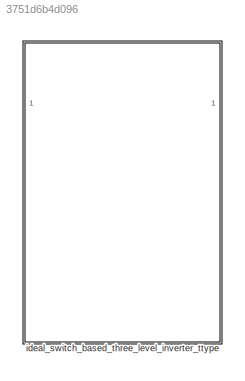
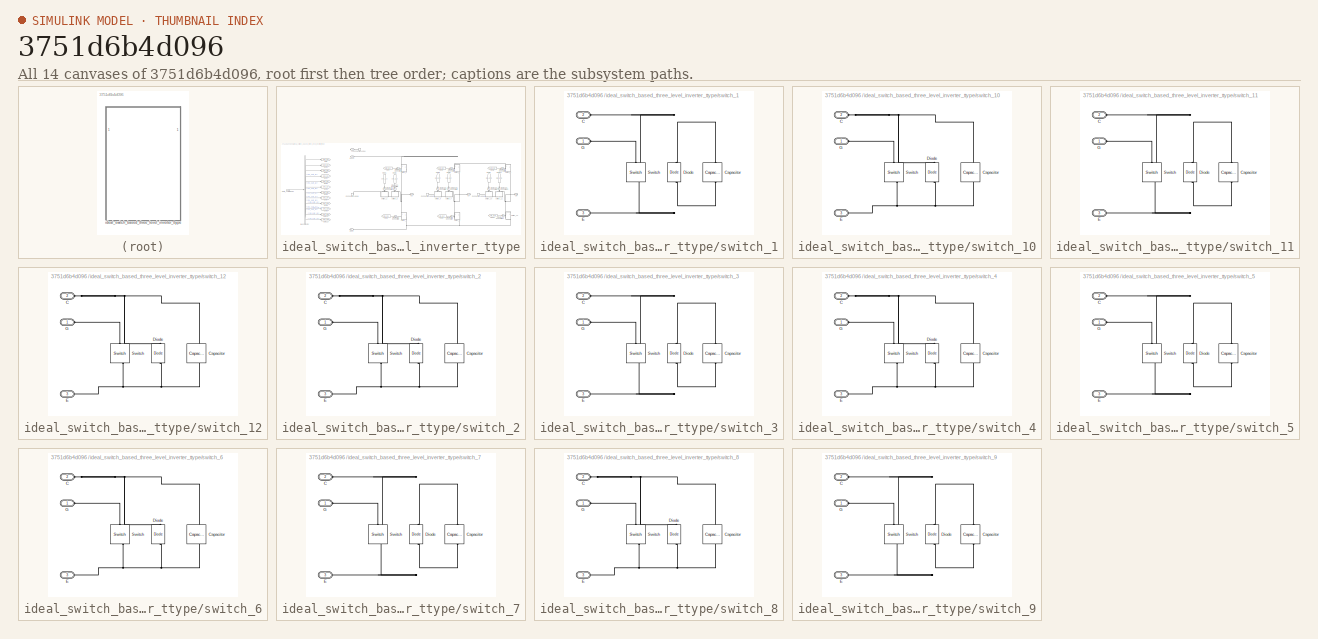
[diagram: thumbnail index - all 14 canvases of the model, root first then tree order]
MODEL slx_3751d6b4d096
KIND library
CONFIG AbsTol = auto
CONFIG EnableMultiTasking = off
CONFIG FixedStep = auto
CONFIG MaxStep = auto
CONFIG MinStep = auto
CONFIG RelTol = 1e-3
CONFIG SampleTimeConstraint = Unconstrained
CONFIG SolverName = VariableStepAuto
CONFIG StartTime = 0.0
CONFIG StopTime = 10.0
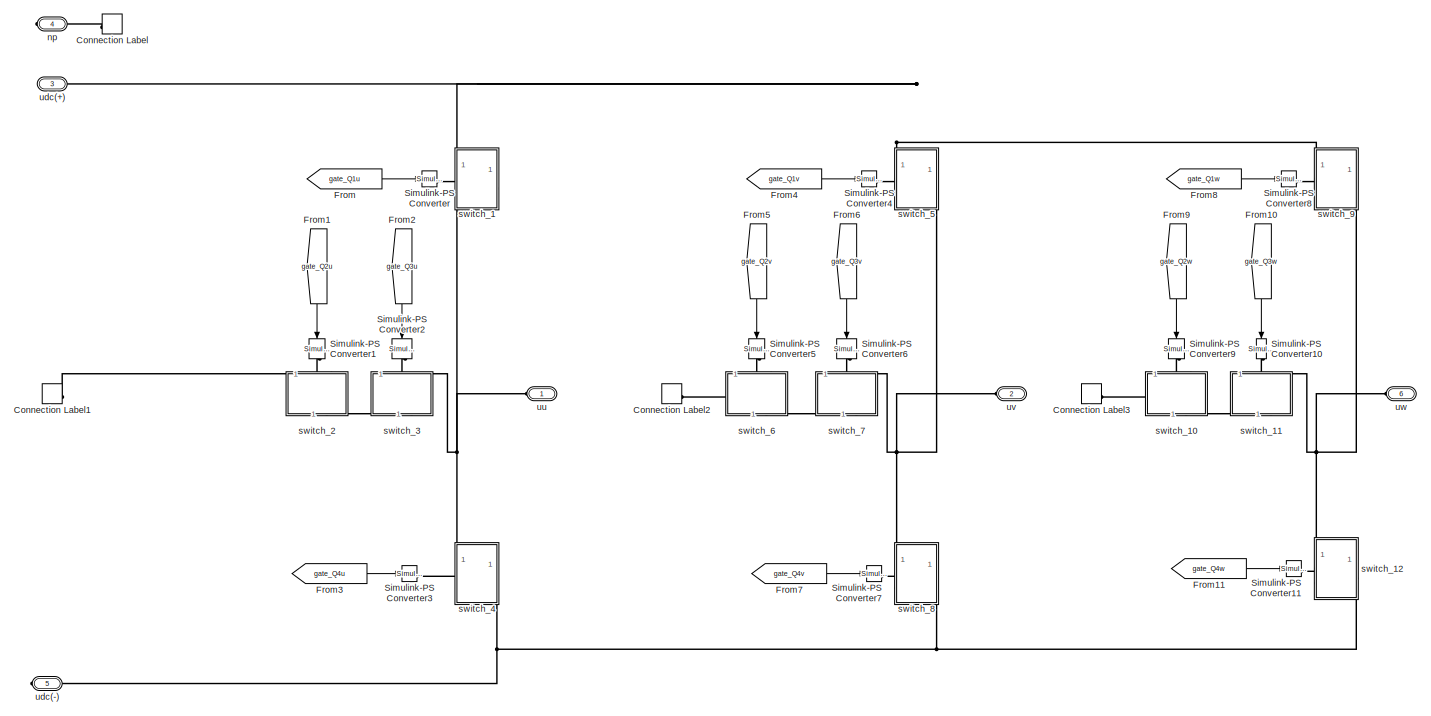
[diagram: ideal_switch_based_three_level_inverter_ttype - part 1/2, most of the canvas]
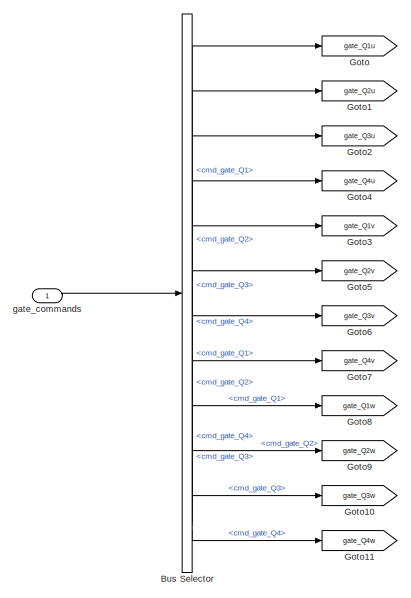
[diagram: ideal_switch_based_three_level_inverter_ttype - part 2/2, left side, full height]
BLOCK [SubSystem] ideal_switch_based_three_level_inverter_ttype
BLOCK [BusSelector] ideal_switch_based_three_level_inverter_ttype/Bus Selector
  OutputSignals = gate_cmds_phu.cmd_gate_Q1,gate_cmds_phu.cmd_gate_Q2,gate_cmds_phu.cmd_gate_Q3,gate_cmds_phu.cmd_gate_Q4,gate_cmds_phv.cmd_gate_Q1,gate_cmds_phv.cmd_gate_Q2,gate_cmds_phv.cmd_gate_Q3,gate_cmds_phv.cmd_gate_Q4,gate_cmds_phw.cmd_gate_Q1,gate_cmds_phw.cmd_gate_Q2,gate_cmds_phw.cmd_gate_Q3,gate_cmds_phw.cmd_gate_Q4
BLOCK [ConnectionLabel] ideal_switch_based_three_level_inverter_ttype/Connection Label
  Label = np
BLOCK [ConnectionLabel] ideal_switch_based_three_level_inverter_ttype/Connection Label1
  Label = np
  NameLocation = top
BLOCK [ConnectionLabel] ideal_switch_based_three_level_inverter_ttype/Connection Label2
  Label = np
  NameLocation = top
BLOCK [ConnectionLabel] ideal_switch_based_three_level_inverter_ttype/Connection Label3
  Label = np
  NameLocation = top
BLOCK [From] ideal_switch_based_three_level_inverter_ttype/From
  GotoTag = gate_Q1u
BLOCK [From] ideal_switch_based_three_level_inverter_ttype/From1
  GotoTag = gate_Q2u
  NameLocation = left
BLOCK [From] ideal_switch_based_three_level_inverter_ttype/From10
  GotoTag = gate_Q3w
  NameLocation = left
BLOCK [From] ideal_switch_based_three_level_inverter_ttype/From11
  GotoTag = gate_Q4w
BLOCK [From] ideal_switch_based_three_level_inverter_ttype/From2
  GotoTag = gate_Q3u
  NameLocation = left
BLOCK [From] ideal_switch_based_three_level_inverter_ttype/From3
  GotoTag = gate_Q4u
  NameLocation = top
BLOCK [From] ideal_switch_based_three_level_inverter_ttype/From4
  GotoTag = gate_Q1v
BLOCK [From] ideal_switch_based_three_level_inverter_ttype/From5
  GotoTag = gate_Q2v
  NameLocation = left
BLOCK [From] ideal_switch_based_three_level_inverter_ttype/From6
  GotoTag = gate_Q3v
  NameLocation = left
BLOCK [From] ideal_switch_based_three_level_inverter_ttype/From7
  GotoTag = gate_Q4v
  NameLocation = top
BLOCK [From] ideal_switch_based_three_level_inverter_ttype/From8
  GotoTag = gate_Q1w
BLOCK [From] ideal_switch_based_three_level_inverter_ttype/From9
  GotoTag = gate_Q2w
  NameLocation = left
BLOCK [Goto] ideal_switch_based_three_level_inverter_ttype/Goto
  GotoTag = gate_Q1u
BLOCK [Goto] ideal_switch_based_three_level_inverter_ttype/Goto1
  GotoTag = gate_Q2u
BLOCK [Goto] ideal_switch_based_three_level_inverter_ttype/Goto10
  GotoTag = gate_Q3w
BLOCK [Goto] ideal_switch_based_three_level_inverter_ttype/Goto11
  GotoTag = gate_Q4w
BLOCK [Goto] ideal_switch_based_three_level_inverter_ttype/Goto2
  GotoTag = gate_Q3u
BLOCK [Goto] ideal_switch_based_three_level_inverter_ttype/Goto3
  GotoTag = gate_Q1v
BLOCK [Goto] ideal_switch_based_three_level_inverter_ttype/Goto4
  GotoTag = gate_Q4u
BLOCK [Goto] ideal_switch_based_three_level_inverter_ttype/Goto5
  GotoTag = gate_Q2v
BLOCK [Goto] ideal_switch_based_three_level_inverter_ttype/Goto6
  GotoTag = gate_Q3v
BLOCK [Goto] ideal_switch_based_three_level_inverter_ttype/Goto7
  GotoTag = gate_Q4v
BLOCK [Goto] ideal_switch_based_three_level_inverter_ttype/Goto8
  GotoTag = gate_Q1w
BLOCK [Goto] ideal_switch_based_three_level_inverter_ttype/Goto9
  GotoTag = gate_Q2w
BLOCK [Reference] ideal_switch_based_three_level_inverter_ttype/Simulink-PS Converter  REF=nesl_utility/Simulink-PS
Converter
  SourceBlock = nesl_utility/Simulink-PS\nConverter
  SourceType = Simulink-PS\nConverter
BLOCK [Reference] ideal_switch_based_three_level_inverter_ttype/Simulink-PS Converter1  REF=nesl_utility/Simulink-PS
Converter
  NameLocation = top
  SourceBlock = nesl_utility/Simulink-PS\nConverter
  SourceType = Simulink-PS\nConverter
BLOCK [Reference] ideal_switch_based_three_level_inverter_ttype/Simulink-PS Converter10  REF=nesl_utility/Simulink-PS
Converter
  NameLocation = right
  SourceBlock = nesl_utility/Simulink-PS\nConverter
  SourceType = Simulink-PS\nConverter
BLOCK [Reference] ideal_switch_based_three_level_inverter_ttype/Simulink-PS Converter11  REF=nesl_utility/Simulink-PS
Converter
  SourceBlock = nesl_utility/Simulink-PS\nConverter
  SourceType = Simulink-PS\nConverter
BLOCK [Reference] ideal_switch_based_three_level_inverter_ttype/Simulink-PS Converter2  REF=nesl_utility/Simulink-PS
Converter
  NameLocation = right
  SourceBlock = nesl_utility/Simulink-PS\nConverter
  SourceType = Simulink-PS\nConverter
BLOCK [Reference] ideal_switch_based_three_level_inverter_ttype/Simulink-PS Converter3  REF=nesl_utility/Simulink-PS
Converter
  NameLocation = top
  SourceBlock = nesl_utility/Simulink-PS\nConverter
  SourceType = Simulink-PS\nConverter
BLOCK [Reference] ideal_switch_based_three_level_inverter_ttype/Simulink-PS Converter4  REF=nesl_utility/Simulink-PS
Converter
  SourceBlock = nesl_utility/Simulink-PS\nConverter
  SourceType = Simulink-PS\nConverter
BLOCK [Reference] ideal_switch_based_three_level_inverter_ttype/Simulink-PS Converter5  REF=nesl_utility/Simulink-PS
Converter
  NameLocation = top
  SourceBlock = nesl_utility/Simulink-PS\nConverter
  SourceType = Simulink-PS\nConverter
BLOCK [Reference] ideal_switch_based_three_level_inverter_ttype/Simulink-PS Converter6  REF=nesl_utility/Simulink-PS
Converter
  NameLocation = right
  SourceBlock = nesl_utility/Simulink-PS\nConverter
  SourceType = Simulink-PS\nConverter
BLOCK [Reference] ideal_switch_based_three_level_inverter_ttype/Simulink-PS Converter7  REF=nesl_utility/Simulink-PS
Converter
  NameLocation = top
  SourceBlock = nesl_utility/Simulink-PS\nConverter
  SourceType = Simulink-PS\nConverter
BLOCK [Reference] ideal_switch_based_three_level_inverter_ttype/Simulink-PS Converter8  REF=nesl_utility/Simulink-PS
Converter
  SourceBlock = nesl_utility/Simulink-PS\nConverter
  SourceType = Simulink-PS\nConverter
BLOCK [Reference] ideal_switch_based_three_level_inverter_ttype/Simulink-PS Converter9  REF=nesl_utility/Simulink-PS
Converter
  NameLocation = top
  SourceBlock = nesl_utility/Simulink-PS\nConverter
  SourceType = Simulink-PS\nConverter
BLOCK [Inport] ideal_switch_based_three_level_inverter_ttype/gate_commands
BLOCK [PMIOPort] ideal_switch_based_three_level_inverter_ttype/np
  Port = 4
  Side = Right
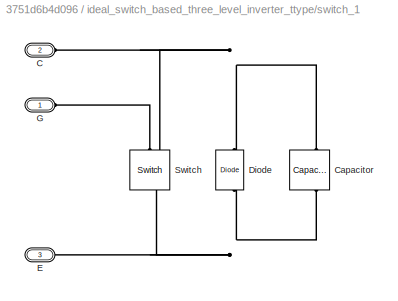
BLOCK [SubSystem] ideal_switch_based_three_level_inverter_ttype/switch_1
  NameLocation = right
  PortSchema = {"entries":[{"content":{"sides":[{"content":{"connectorIds":["LConn1"]},"type":"ConnectorPlacement.EquallySpacedRectSide","uuid":"9277da8d-d460-43e6-8478-dd662f15d226"},{"content":{"connectorIds":[],"side":"RIGHT"},"type":"ConnectorPlacement.EquallySpacedRectSide","uuid":"a7ece396-f1d9-4f4f-a05b-db1fc65d6e1d"},{"content":{"connectorIds":["LConn2"],"side":"TOP"},"type":"ConnectorPlacement.EquallySp...<+397ch>  <repeated x12 — deduplicated; at blocks: switch_1, switch_10, switch_11, switch_12, switch_2, switch_3, switch_4, switch_5, switch_6, switch_7, switch_8, switch_9>
BLOCK [PMIOPort] ideal_switch_based_three_level_inverter_ttype/switch_1/C
  NameLocation = top
  Port = 2
  Side = Left
BLOCK [Reference] ideal_switch_based_three_level_inverter_ttype/switch_1/Capacitor  REF=fl_lib/Electrical/Electrical Elements/Capacitor
  NameLocation = left
  SourceBlock = fl_lib/Electrical/Electrical Elements/Capacitor
  SourceType = Capacitor
BLOCK [Reference] ideal_switch_based_three_level_inverter_ttype/switch_1/Diode  REF=fl_lib/Electrical/Electrical Elements/Diode
  NameLocation = right
  SourceBlock = fl_lib/Electrical/Electrical Elements/Diode
  SourceType = Diode
BLOCK [PMIOPort] ideal_switch_based_three_level_inverter_ttype/switch_1/E
  NameLocation = top
  Port = 3
  Side = Right
BLOCK [PMIOPort] ideal_switch_based_three_level_inverter_ttype/switch_1/G
  NameLocation = top
  Side = Left
BLOCK [Reference] ideal_switch_based_three_level_inverter_ttype/switch_1/Switch  REF=fl_lib/Electrical/Electrical Elements/Switch
  NameLocation = left
  SourceBlock = fl_lib/Electrical/Electrical Elements/Switch
  SourceType = Switch
BLOCK [SubSystem] ideal_switch_based_three_level_inverter_ttype/switch_10
BLOCK [PMIOPort] ideal_switch_based_three_level_inverter_ttype/switch_10/C
  NameLocation = top
  Port = 2
  Side = Left
BLOCK [Reference] ideal_switch_based_three_level_inverter_ttype/switch_10/Capacitor  REF=fl_lib/Electrical/Electrical Elements/Capacitor
  NameLocation = left
  SourceBlock = fl_lib/Electrical/Electrical Elements/Capacitor
  SourceType = Capacitor
BLOCK [Reference] ideal_switch_based_three_level_inverter_ttype/switch_10/Diode  REF=fl_lib/Electrical/Electrical Elements/Diode
  NameLocation = right
  SourceBlock = fl_lib/Electrical/Electrical Elements/Diode
  SourceType = Diode
BLOCK [PMIOPort] ideal_switch_based_three_level_inverter_ttype/switch_10/E
  NameLocation = top
  Port = 3
  Side = Right
BLOCK [PMIOPort] ideal_switch_based_three_level_inverter_ttype/switch_10/G
  NameLocation = top
  Side = Left
BLOCK [Reference] ideal_switch_based_three_level_inverter_ttype/switch_10/Switch  REF=fl_lib/Electrical/Electrical Elements/Switch
  NameLocation = left
  SourceBlock = fl_lib/Electrical/Electrical Elements/Switch
  SourceType = Switch
BLOCK [SubSystem] ideal_switch_based_three_level_inverter_ttype/switch_11
BLOCK [PMIOPort] ideal_switch_based_three_level_inverter_ttype/switch_11/C
  NameLocation = top
  Port = 2
  Side = Left
BLOCK [Reference] ideal_switch_based_three_level_inverter_ttype/switch_11/Capacitor  REF=fl_lib/Electrical/Electrical Elements/Capacitor
  NameLocation = left
  SourceBlock = fl_lib/Electrical/Electrical Elements/Capacitor
  SourceType = Capacitor
BLOCK [Reference] ideal_switch_based_three_level_inverter_ttype/switch_11/Diode  REF=fl_lib/Electrical/Electrical Elements/Diode
  NameLocation = right
  SourceBlock = fl_lib/Electrical/Electrical Elements/Diode
  SourceType = Diode
BLOCK [PMIOPort] ideal_switch_based_three_level_inverter_ttype/switch_11/E
  NameLocation = top
  Port = 3
  Side = Right
BLOCK [PMIOPort] ideal_switch_based_three_level_inverter_ttype/switch_11/G
  NameLocation = top
  Side = Left
BLOCK [Reference] ideal_switch_based_three_level_inverter_ttype/switch_11/Switch  REF=fl_lib/Electrical/Electrical Elements/Switch
  NameLocation = left
  SourceBlock = fl_lib/Electrical/Electrical Elements/Switch
  SourceType = Switch
BLOCK [SubSystem] ideal_switch_based_three_level_inverter_ttype/switch_12
  NameLocation = right
BLOCK [PMIOPort] ideal_switch_based_three_level_inverter_ttype/switch_12/C
  NameLocation = top
  Port = 2
  Side = Left
BLOCK [Reference] ideal_switch_based_three_level_inverter_ttype/switch_12/Capacitor  REF=fl_lib/Electrical/Electrical Elements/Capacitor
  NameLocation = left
  SourceBlock = fl_lib/Electrical/Electrical Elements/Capacitor
  SourceType = Capacitor
BLOCK [Reference] ideal_switch_based_three_level_inverter_ttype/switch_12/Diode  REF=fl_lib/Electrical/Electrical Elements/Diode
  NameLocation = right
  SourceBlock = fl_lib/Electrical/Electrical Elements/Diode
  SourceType = Diode
BLOCK [PMIOPort] ideal_switch_based_three_level_inverter_ttype/switch_12/E
  NameLocation = top
  Port = 3
  Side = Right
BLOCK [PMIOPort] ideal_switch_based_three_level_inverter_ttype/switch_12/G
  NameLocation = top
  Side = Left
BLOCK [Reference] ideal_switch_based_three_level_inverter_ttype/switch_12/Switch  REF=fl_lib/Electrical/Electrical Elements/Switch
  NameLocation = left
  SourceBlock = fl_lib/Electrical/Electrical Elements/Switch
  SourceType = Switch
BLOCK [SubSystem] ideal_switch_based_three_level_inverter_ttype/switch_2
BLOCK [PMIOPort] ideal_switch_based_three_level_inverter_ttype/switch_2/C
  NameLocation = top
  Port = 2
  Side = Left
BLOCK [Reference] ideal_switch_based_three_level_inverter_ttype/switch_2/Capacitor  REF=fl_lib/Electrical/Electrical Elements/Capacitor
  NameLocation = left
  SourceBlock = fl_lib/Electrical/Electrical Elements/Capacitor
  SourceType = Capacitor
BLOCK [Reference] ideal_switch_based_three_level_inverter_ttype/switch_2/Diode  REF=fl_lib/Electrical/Electrical Elements/Diode
  NameLocation = right
  SourceBlock = fl_lib/Electrical/Electrical Elements/Diode
  SourceType = Diode
BLOCK [PMIOPort] ideal_switch_based_three_level_inverter_ttype/switch_2/E
  NameLocation = top
  Port = 3
  Side = Right
BLOCK [PMIOPort] ideal_switch_based_three_level_inverter_ttype/switch_2/G
  NameLocation = top
  Side = Left
BLOCK [Reference] ideal_switch_based_three_level_inverter_ttype/switch_2/Switch  REF=fl_lib/Electrical/Electrical Elements/Switch
  NameLocation = left
  SourceBlock = fl_lib/Electrical/Electrical Elements/Switch
  SourceType = Switch
BLOCK [SubSystem] ideal_switch_based_three_level_inverter_ttype/switch_3
BLOCK [PMIOPort] ideal_switch_based_three_level_inverter_ttype/switch_3/C
  NameLocation = top
  Port = 2
  Side = Left
BLOCK [Reference] ideal_switch_based_three_level_inverter_ttype/switch_3/Capacitor  REF=fl_lib/Electrical/Electrical Elements/Capacitor
  NameLocation = left
  SourceBlock = fl_lib/Electrical/Electrical Elements/Capacitor
  SourceType = Capacitor
BLOCK [Reference] ideal_switch_based_three_level_inverter_ttype/switch_3/Diode  REF=fl_lib/Electrical/Electrical Elements/Diode
  NameLocation = right
  SourceBlock = fl_lib/Electrical/Electrical Elements/Diode
  SourceType = Diode
BLOCK [PMIOPort] ideal_switch_based_three_level_inverter_ttype/switch_3/E
  NameLocation = top
  Port = 3
  Side = Right
BLOCK [PMIOPort] ideal_switch_based_three_level_inverter_ttype/switch_3/G
  NameLocation = top
  Side = Left
BLOCK [Reference] ideal_switch_based_three_level_inverter_ttype/switch_3/Switch  REF=fl_lib/Electrical/Electrical Elements/Switch
  NameLocation = left
  SourceBlock = fl_lib/Electrical/Electrical Elements/Switch
  SourceType = Switch
BLOCK [SubSystem] ideal_switch_based_three_level_inverter_ttype/switch_4
  NameLocation = right
BLOCK [PMIOPort] ideal_switch_based_three_level_inverter_ttype/switch_4/C
  NameLocation = top
  Port = 2
  Side = Left
BLOCK [Reference] ideal_switch_based_three_level_inverter_ttype/switch_4/Capacitor  REF=fl_lib/Electrical/Electrical Elements/Capacitor
  NameLocation = left
  SourceBlock = fl_lib/Electrical/Electrical Elements/Capacitor
  SourceType = Capacitor
BLOCK [Reference] ideal_switch_based_three_level_inverter_ttype/switch_4/Diode  REF=fl_lib/Electrical/Electrical Elements/Diode
  NameLocation = right
  SourceBlock = fl_lib/Electrical/Electrical Elements/Diode
  SourceType = Diode
BLOCK [PMIOPort] ideal_switch_based_three_level_inverter_ttype/switch_4/E
  NameLocation = top
  Port = 3
  Side = Right
BLOCK [PMIOPort] ideal_switch_based_three_level_inverter_ttype/switch_4/G
  NameLocation = top
  Side = Left
BLOCK [Reference] ideal_switch_based_three_level_inverter_ttype/switch_4/Switch  REF=fl_lib/Electrical/Electrical Elements/Switch
  NameLocation = left
  SourceBlock = fl_lib/Electrical/Electrical Elements/Switch
  SourceType = Switch
BLOCK [SubSystem] ideal_switch_based_three_level_inverter_ttype/switch_5
  NameLocation = right
BLOCK [PMIOPort] ideal_switch_based_three_level_inverter_ttype/switch_5/C
  NameLocation = top
  Port = 2
  Side = Left
BLOCK [Reference] ideal_switch_based_three_level_inverter_ttype/switch_5/Capacitor  REF=fl_lib/Electrical/Electrical Elements/Capacitor
  NameLocation = left
  SourceBlock = fl_lib/Electrical/Electrical Elements/Capacitor
  SourceType = Capacitor
BLOCK [Reference] ideal_switch_based_three_level_inverter_ttype/switch_5/Diode  REF=fl_lib/Electrical/Electrical Elements/Diode
  NameLocation = right
  SourceBlock = fl_lib/Electrical/Electrical Elements/Diode
  SourceType = Diode
BLOCK [PMIOPort] ideal_switch_based_three_level_inverter_ttype/switch_5/E
  NameLocation = top
  Port = 3
  Side = Right
BLOCK [PMIOPort] ideal_switch_based_three_level_inverter_ttype/switch_5/G
  NameLocation = top
  Side = Left
BLOCK [Reference] ideal_switch_based_three_level_inverter_ttype/switch_5/Switch  REF=fl_lib/Electrical/Electrical Elements/Switch
  NameLocation = left
  SourceBlock = fl_lib/Electrical/Electrical Elements/Switch
  SourceType = Switch
BLOCK [SubSystem] ideal_switch_based_three_level_inverter_ttype/switch_6
BLOCK [PMIOPort] ideal_switch_based_three_level_inverter_ttype/switch_6/C
  NameLocation = top
  Port = 2
  Side = Left
BLOCK [Reference] ideal_switch_based_three_level_inverter_ttype/switch_6/Capacitor  REF=fl_lib/Electrical/Electrical Elements/Capacitor
  NameLocation = left
  SourceBlock = fl_lib/Electrical/Electrical Elements/Capacitor
  SourceType = Capacitor
BLOCK [Reference] ideal_switch_based_three_level_inverter_ttype/switch_6/Diode  REF=fl_lib/Electrical/Electrical Elements/Diode
  NameLocation = right
  SourceBlock = fl_lib/Electrical/Electrical Elements/Diode
  SourceType = Diode
BLOCK [PMIOPort] ideal_switch_based_three_level_inverter_ttype/switch_6/E
  NameLocation = top
  Port = 3
  Side = Right
BLOCK [PMIOPort] ideal_switch_based_three_level_inverter_ttype/switch_6/G
  NameLocation = top
  Side = Left
BLOCK [Reference] ideal_switch_based_three_level_inverter_ttype/switch_6/Switch  REF=fl_lib/Electrical/Electrical Elements/Switch
  NameLocation = left
  SourceBlock = fl_lib/Electrical/Electrical Elements/Switch
  SourceType = Switch
BLOCK [SubSystem] ideal_switch_based_three_level_inverter_ttype/switch_7
BLOCK [PMIOPort] ideal_switch_based_three_level_inverter_ttype/switch_7/C
  NameLocation = top
  Port = 2
  Side = Left
BLOCK [Reference] ideal_switch_based_three_level_inverter_ttype/switch_7/Capacitor  REF=fl_lib/Electrical/Electrical Elements/Capacitor
  NameLocation = left
  SourceBlock = fl_lib/Electrical/Electrical Elements/Capacitor
  SourceType = Capacitor
BLOCK [Reference] ideal_switch_based_three_level_inverter_ttype/switch_7/Diode  REF=fl_lib/Electrical/Electrical Elements/Diode
  NameLocation = right
  SourceBlock = fl_lib/Electrical/Electrical Elements/Diode
  SourceType = Diode
BLOCK [PMIOPort] ideal_switch_based_three_level_inverter_ttype/switch_7/E
  NameLocation = top
  Port = 3
  Side = Right
BLOCK [PMIOPort] ideal_switch_based_three_level_inverter_ttype/switch_7/G
  NameLocation = top
  Side = Left
BLOCK [Reference] ideal_switch_based_three_level_inverter_ttype/switch_7/Switch  REF=fl_lib/Electrical/Electrical Elements/Switch
  NameLocation = left
  SourceBlock = fl_lib/Electrical/Electrical Elements/Switch
  SourceType = Switch
BLOCK [SubSystem] ideal_switch_based_three_level_inverter_ttype/switch_8
  NameLocation = right
BLOCK [PMIOPort] ideal_switch_based_three_level_inverter_ttype/switch_8/C
  NameLocation = top
  Port = 2
  Side = Left
BLOCK [Reference] ideal_switch_based_three_level_inverter_ttype/switch_8/Capacitor  REF=fl_lib/Electrical/Electrical Elements/Capacitor
  NameLocation = left
  SourceBlock = fl_lib/Electrical/Electrical Elements/Capacitor
  SourceType = Capacitor
BLOCK [Reference] ideal_switch_based_three_level_inverter_ttype/switch_8/Diode  REF=fl_lib/Electrical/Electrical Elements/Diode
  NameLocation = right
  SourceBlock = fl_lib/Electrical/Electrical Elements/Diode
  SourceType = Diode
BLOCK [PMIOPort] ideal_switch_based_three_level_inverter_ttype/switch_8/E
  NameLocation = top
  Port = 3
  Side = Right
BLOCK [PMIOPort] ideal_switch_based_three_level_inverter_ttype/switch_8/G
  NameLocation = top
  Side = Left
BLOCK [Reference] ideal_switch_based_three_level_inverter_ttype/switch_8/Switch  REF=fl_lib/Electrical/Electrical Elements/Switch
  NameLocation = left
  SourceBlock = fl_lib/Electrical/Electrical Elements/Switch
  SourceType = Switch
BLOCK [SubSystem] ideal_switch_based_three_level_inverter_ttype/switch_9
  NameLocation = right
BLOCK [PMIOPort] ideal_switch_based_three_level_inverter_ttype/switch_9/C
  NameLocation = top
  Port = 2
  Side = Left
BLOCK [Reference] ideal_switch_based_three_level_inverter_ttype/switch_9/Capacitor  REF=fl_lib/Electrical/Electrical Elements/Capacitor
  NameLocation = left
  SourceBlock = fl_lib/Electrical/Electrical Elements/Capacitor
  SourceType = Capacitor
BLOCK [Reference] ideal_switch_based_three_level_inverter_ttype/switch_9/Diode  REF=fl_lib/Electrical/Electrical Elements/Diode
  NameLocation = right
  SourceBlock = fl_lib/Electrical/Electrical Elements/Diode
  SourceType = Diode
BLOCK [PMIOPort] ideal_switch_based_three_level_inverter_ttype/switch_9/E
  NameLocation = top
  Port = 3
  Side = Right
BLOCK [PMIOPort] ideal_switch_based_three_level_inverter_ttype/switch_9/G
  NameLocation = top
  Side = Left
BLOCK [Reference] ideal_switch_based_three_level_inverter_ttype/switch_9/Switch  REF=fl_lib/Electrical/Electrical Elements/Switch
  NameLocation = left
  SourceBlock = fl_lib/Electrical/Electrical Elements/Switch
  SourceType = Switch
BLOCK [PMIOPort] ideal_switch_based_three_level_inverter_ttype/udc(+)
  Port = 3
  Side = Right
BLOCK [PMIOPort] ideal_switch_based_three_level_inverter_ttype/udc(-)
  Port = 5
  Side = Right
BLOCK [PMIOPort] ideal_switch_based_three_level_inverter_ttype/uu
  Side = Left
BLOCK [PMIOPort] ideal_switch_based_three_level_inverter_ttype/uv
  Port = 2
  Side = Left
BLOCK [PMIOPort] ideal_switch_based_three_level_inverter_ttype/uw
  Port = 6
  Side = Left
LINE ideal_switch_based_three_level_inverter_ttype/Bus Selector:1 -> ideal_switch_based_three_level_inverter_ttype/Goto:1
LINE ideal_switch_based_three_level_inverter_ttype/Bus Selector:10 -> ideal_switch_based_three_level_inverter_ttype/Goto9:1
LINE ideal_switch_based_three_level_inverter_ttype/Bus Selector:11 -> ideal_switch_based_three_level_inverter_ttype/Goto10:1
LINE ideal_switch_based_three_level_inverter_ttype/Bus Selector:12 -> ideal_switch_based_three_level_inverter_ttype/Goto11:1
LINE ideal_switch_based_three_level_inverter_ttype/Bus Selector:2 -> ideal_switch_based_three_level_inverter_ttype/Goto1:1
LINE ideal_switch_based_three_level_inverter_ttype/Bus Selector:3 -> ideal_switch_based_three_level_inverter_ttype/Goto2:1
LINE ideal_switch_based_three_level_inverter_ttype/Bus Selector:4 -> ideal_switch_based_three_level_inverter_ttype/Goto4:1
LINE ideal_switch_based_three_level_inverter_ttype/Bus Selector:5 -> ideal_switch_based_three_level_inverter_ttype/Goto3:1
LINE ideal_switch_based_three_level_inverter_ttype/Bus Selector:6 -> ideal_switch_based_three_level_inverter_ttype/Goto5:1
LINE ideal_switch_based_three_level_inverter_ttype/Bus Selector:7 -> ideal_switch_based_three_level_inverter_ttype/Goto6:1
LINE ideal_switch_based_three_level_inverter_ttype/Bus Selector:8 -> ideal_switch_based_three_level_inverter_ttype/Goto7:1
LINE ideal_switch_based_three_level_inverter_ttype/Bus Selector:9 -> ideal_switch_based_three_level_inverter_ttype/Goto8:1
LINE ideal_switch_based_three_level_inverter_ttype/From10:1 -> ideal_switch_based_three_level_inverter_ttype/Simulink-PS Converter10:1
LINE ideal_switch_based_three_level_inverter_ttype/From11:1 -> ideal_switch_based_three_level_inverter_ttype/Simulink-PS Converter11:1
LINE ideal_switch_based_three_level_inverter_ttype/From1:1 -> ideal_switch_based_three_level_inverter_ttype/Simulink-PS Converter1:1
LINE ideal_switch_based_three_level_inverter_ttype/From2:1 -> ideal_switch_based_three_level_inverter_ttype/Simulink-PS Converter2:1
LINE ideal_switch_based_three_level_inverter_ttype/From3:1 -> ideal_switch_based_three_level_inverter_ttype/Simulink-PS Converter3:1
LINE ideal_switch_based_three_level_inverter_ttype/From4:1 -> ideal_switch_based_three_level_inverter_ttype/Simulink-PS Converter4:1
LINE ideal_switch_based_three_level_inverter_ttype/From5:1 -> ideal_switch_based_three_level_inverter_ttype/Simulink-PS Converter5:1
LINE ideal_switch_based_three_level_inverter_ttype/From6:1 -> ideal_switch_based_three_level_inverter_ttype/Simulink-PS Converter6:1
LINE ideal_switch_based_three_level_inverter_ttype/From7:1 -> ideal_switch_based_three_level_inverter_ttype/Simulink-PS Converter7:1
LINE ideal_switch_based_three_level_inverter_ttype/From8:1 -> ideal_switch_based_three_level_inverter_ttype/Simulink-PS Converter8:1
LINE ideal_switch_based_three_level_inverter_ttype/From9:1 -> ideal_switch_based_three_level_inverter_ttype/Simulink-PS Converter9:1
LINE ideal_switch_based_three_level_inverter_ttype/From:1 -> ideal_switch_based_three_level_inverter_ttype/Simulink-PS Converter:1
LINE ideal_switch_based_three_level_inverter_ttype/gate_commands:1 -> ideal_switch_based_three_level_inverter_ttype/Bus Selector:1
PLINE ideal_switch_based_three_level_inverter_ttype/Connection Label1:LConn1 -- ideal_switch_based_three_level_inverter_ttype/switch_2:LConn2
PLINE ideal_switch_based_three_level_inverter_ttype/Connection Label2:LConn1 -- ideal_switch_based_three_level_inverter_ttype/switch_6:LConn2
PLINE ideal_switch_based_three_level_inverter_ttype/Connection Label3:LConn1 -- ideal_switch_based_three_level_inverter_ttype/switch_10:LConn2
PLINE ideal_switch_based_three_level_inverter_ttype/Connection Label:LConn1 -- ideal_switch_based_three_level_inverter_ttype/np:RConn1
PLINE ideal_switch_based_three_level_inverter_ttype/Simulink-PS Converter10:RConn1 -- ideal_switch_based_three_level_inverter_ttype/switch_11:LConn1
PLINE ideal_switch_based_three_level_inverter_ttype/Simulink-PS Converter11:RConn1 -- ideal_switch_based_three_level_inverter_ttype/switch_12:LConn1
PLINE ideal_switch_based_three_level_inverter_ttype/Simulink-PS Converter1:RConn1 -- ideal_switch_based_three_level_inverter_ttype/switch_2:LConn1
PLINE ideal_switch_based_three_level_inverter_ttype/Simulink-PS Converter2:RConn1 -- ideal_switch_based_three_level_inverter_ttype/switch_3:LConn1
PLINE ideal_switch_based_three_level_inverter_ttype/Simulink-PS Converter3:RConn1 -- ideal_switch_based_three_level_inverter_ttype/switch_4:LConn1
PLINE ideal_switch_based_three_level_inverter_ttype/Simulink-PS Converter4:RConn1 -- ideal_switch_based_three_level_inverter_ttype/switch_5:LConn1
PLINE ideal_switch_based_three_level_inverter_ttype/Simulink-PS Converter5:RConn1 -- ideal_switch_based_three_level_inverter_ttype/switch_6:LConn1
PLINE ideal_switch_based_three_level_inverter_ttype/Simulink-PS Converter6:RConn1 -- ideal_switch_based_three_level_inverter_ttype/switch_7:LConn1
PLINE ideal_switch_based_three_level_inverter_ttype/Simulink-PS Converter7:RConn1 -- ideal_switch_based_three_level_inverter_ttype/switch_8:LConn1
PLINE ideal_switch_based_three_level_inverter_ttype/Simulink-PS Converter8:RConn1 -- ideal_switch_based_three_level_inverter_ttype/switch_9:LConn1
PLINE ideal_switch_based_three_level_inverter_ttype/Simulink-PS Converter9:RConn1 -- ideal_switch_based_three_level_inverter_ttype/switch_10:LConn1
PLINE ideal_switch_based_three_level_inverter_ttype/Simulink-PS Converter:RConn1 -- ideal_switch_based_three_level_inverter_ttype/switch_1:LConn1
PNET net1: ideal_switch_based_three_level_inverter_ttype/switch_1/C:RConn1 -- ideal_switch_based_three_level_inverter_ttype/switch_1/Capacitor:LConn1 -- ideal_switch_based_three_level_inverter_ttype/switch_1/Diode:RConn1 -- ideal_switch_based_three_level_inverter_ttype/switch_1/Switch:RConn2
PNET net2: ideal_switch_based_three_level_inverter_ttype/switch_1/Capacitor:RConn1 -- ideal_switch_based_three_level_inverter_ttype/switch_1/Diode:LConn1 -- ideal_switch_based_three_level_inverter_ttype/switch_1/E:RConn1 -- ideal_switch_based_three_level_inverter_ttype/switch_1/Switch:LConn1
PLINE ideal_switch_based_three_level_inverter_ttype/switch_1/G:RConn1 -- ideal_switch_based_three_level_inverter_ttype/switch_1/Switch:RConn1
PNET net3: ideal_switch_based_three_level_inverter_ttype/switch_10/C:RConn1 -- ideal_switch_based_three_level_inverter_ttype/switch_10/Capacitor:LConn1 -- ideal_switch_based_three_level_inverter_ttype/switch_10/Diode:RConn1 -- ideal_switch_based_three_level_inverter_ttype/switch_10/Switch:RConn2
PNET net4: ideal_switch_based_three_level_inverter_ttype/switch_10/Capacitor:RConn1 -- ideal_switch_based_three_level_inverter_ttype/switch_10/Diode:LConn1 -- ideal_switch_based_three_level_inverter_ttype/switch_10/E:RConn1 -- ideal_switch_based_three_level_inverter_ttype/switch_10/Switch:LConn1
PLINE ideal_switch_based_three_level_inverter_ttype/switch_10/G:RConn1 -- ideal_switch_based_three_level_inverter_ttype/switch_10/Switch:RConn1
PLINE ideal_switch_based_three_level_inverter_ttype/switch_10:RConn1 -- ideal_switch_based_three_level_inverter_ttype/switch_11:RConn1
PNET net5: ideal_switch_based_three_level_inverter_ttype/switch_11/C:RConn1 -- ideal_switch_based_three_level_inverter_ttype/switch_11/Capacitor:LConn1 -- ideal_switch_based_three_level_inverter_ttype/switch_11/Diode:RConn1 -- ideal_switch_based_three_level_inverter_ttype/switch_11/Switch:RConn2
PNET net6: ideal_switch_based_three_level_inverter_ttype/switch_11/Capacitor:RConn1 -- ideal_switch_based_three_level_inverter_ttype/switch_11/Diode:LConn1 -- ideal_switch_based_three_level_inverter_ttype/switch_11/E:RConn1 -- ideal_switch_based_three_level_inverter_ttype/switch_11/Switch:LConn1
PLINE ideal_switch_based_three_level_inverter_ttype/switch_11/G:RConn1 -- ideal_switch_based_three_level_inverter_ttype/switch_11/Switch:RConn1
PNET net7: ideal_switch_based_three_level_inverter_ttype/switch_11:LConn2 -- ideal_switch_based_three_level_inverter_ttype/switch_12:LConn2 -- ideal_switch_based_three_level_inverter_ttype/switch_9:RConn1 -- ideal_switch_based_three_level_inverter_ttype/uw:RConn1
PNET net8: ideal_switch_based_three_level_inverter_ttype/switch_12/C:RConn1 -- ideal_switch_based_three_level_inverter_ttype/switch_12/Capacitor:LConn1 -- ideal_switch_based_three_level_inverter_ttype/switch_12/Diode:RConn1 -- ideal_switch_based_three_level_inverter_ttype/switch_12/Switch:RConn2
PNET net9: ideal_switch_based_three_level_inverter_ttype/switch_12/Capacitor:RConn1 -- ideal_switch_based_three_level_inverter_ttype/switch_12/Diode:LConn1 -- ideal_switch_based_three_level_inverter_ttype/switch_12/E:RConn1 -- ideal_switch_based_three_level_inverter_ttype/switch_12/Switch:LConn1
PLINE ideal_switch_based_three_level_inverter_ttype/switch_12/G:RConn1 -- ideal_switch_based_three_level_inverter_ttype/switch_12/Switch:RConn1
PNET net10: ideal_switch_based_three_level_inverter_ttype/switch_12:RConn1 -- ideal_switch_based_three_level_inverter_ttype/switch_4:RConn1 -- ideal_switch_based_three_level_inverter_ttype/switch_8:RConn1 -- ideal_switch_based_three_level_inverter_ttype/udc(-):RConn1
PNET net11: ideal_switch_based_three_level_inverter_ttype/switch_1:LConn2 -- ideal_switch_based_three_level_inverter_ttype/switch_5:LConn2 -- ideal_switch_based_three_level_inverter_ttype/switch_9:LConn2 -- ideal_switch_based_three_level_inverter_ttype/udc(+):RConn1
PNET net12: ideal_switch_based_three_level_inverter_ttype/switch_1:RConn1 -- ideal_switch_based_three_level_inverter_ttype/switch_3:LConn2 -- ideal_switch_based_three_level_inverter_ttype/switch_4:LConn2 -- ideal_switch_based_three_level_inverter_ttype/uu:RConn1
PNET net13: ideal_switch_based_three_level_inverter_ttype/switch_2/C:RConn1 -- ideal_switch_based_three_level_inverter_ttype/switch_2/Capacitor:LConn1 -- ideal_switch_based_three_level_inverter_ttype/switch_2/Diode:RConn1 -- ideal_switch_based_three_level_inverter_ttype/switch_2/Switch:RConn2
PNET net14: ideal_switch_based_three_level_inverter_ttype/switch_2/Capacitor:RConn1 -- ideal_switch_based_three_level_inverter_ttype/switch_2/Diode:LConn1 -- ideal_switch_based_three_level_inverter_ttype/switch_2/E:RConn1 -- ideal_switch_based_three_level_inverter_ttype/switch_2/Switch:LConn1
PLINE ideal_switch_based_three_level_inverter_ttype/switch_2/G:RConn1 -- ideal_switch_based_three_level_inverter_ttype/switch_2/Switch:RConn1
PLINE ideal_switch_based_three_level_inverter_ttype/switch_2:RConn1 -- ideal_switch_based_three_level_inverter_ttype/switch_3:RConn1
PNET net15: ideal_switch_based_three_level_inverter_ttype/switch_3/C:RConn1 -- ideal_switch_based_three_level_inverter_ttype/switch_3/Capacitor:LConn1 -- ideal_switch_based_three_level_inverter_ttype/switch_3/Diode:RConn1 -- ideal_switch_based_three_level_inverter_ttype/switch_3/Switch:RConn2
PNET net16: ideal_switch_based_three_level_inverter_ttype/switch_3/Capacitor:RConn1 -- ideal_switch_based_three_level_inverter_ttype/switch_3/Diode:LConn1 -- ideal_switch_based_three_level_inverter_ttype/switch_3/E:RConn1 -- ideal_switch_based_three_level_inverter_ttype/switch_3/Switch:LConn1
PLINE ideal_switch_based_three_level_inverter_ttype/switch_3/G:RConn1 -- ideal_switch_based_three_level_inverter_ttype/switch_3/Switch:RConn1
PNET net17: ideal_switch_based_three_level_inverter_ttype/switch_4/C:RConn1 -- ideal_switch_based_three_level_inverter_ttype/switch_4/Capacitor:LConn1 -- ideal_switch_based_three_level_inverter_ttype/switch_4/Diode:RConn1 -- ideal_switch_based_three_level_inverter_ttype/switch_4/Switch:RConn2
PNET net18: ideal_switch_based_three_level_inverter_ttype/switch_4/Capacitor:RConn1 -- ideal_switch_based_three_level_inverter_ttype/switch_4/Diode:LConn1 -- ideal_switch_based_three_level_inverter_ttype/switch_4/E:RConn1 -- ideal_switch_based_three_level_inverter_ttype/switch_4/Switch:LConn1
PLINE ideal_switch_based_three_level_inverter_ttype/switch_4/G:RConn1 -- ideal_switch_based_three_level_inverter_ttype/switch_4/Switch:RConn1
PNET net19: ideal_switch_based_three_level_inverter_ttype/switch_5/C:RConn1 -- ideal_switch_based_three_level_inverter_ttype/switch_5/Capacitor:LConn1 -- ideal_switch_based_three_level_inverter_ttype/switch_5/Diode:RConn1 -- ideal_switch_based_three_level_inverter_ttype/switch_5/Switch:RConn2
PNET net20: ideal_switch_based_three_level_inverter_ttype/switch_5/Capacitor:RConn1 -- ideal_switch_based_three_level_inverter_ttype/switch_5/Diode:LConn1 -- ideal_switch_based_three_level_inverter_ttype/switch_5/E:RConn1 -- ideal_switch_based_three_level_inverter_ttype/switch_5/Switch:LConn1
PLINE ideal_switch_based_three_level_inverter_ttype/switch_5/G:RConn1 -- ideal_switch_based_three_level_inverter_ttype/switch_5/Switch:RConn1
PNET net21: ideal_switch_based_three_level_inverter_ttype/switch_5:RConn1 -- ideal_switch_based_three_level_inverter_ttype/switch_7:LConn2 -- ideal_switch_based_three_level_inverter_ttype/switch_8:LConn2 -- ideal_switch_based_three_level_inverter_ttype/uv:RConn1
PNET net22: ideal_switch_based_three_level_inverter_ttype/switch_6/C:RConn1 -- ideal_switch_based_three_level_inverter_ttype/switch_6/Capacitor:LConn1 -- ideal_switch_based_three_level_inverter_ttype/switch_6/Diode:RConn1 -- ideal_switch_based_three_level_inverter_ttype/switch_6/Switch:RConn2
PNET net23: ideal_switch_based_three_level_inverter_ttype/switch_6/Capacitor:RConn1 -- ideal_switch_based_three_level_inverter_ttype/switch_6/Diode:LConn1 -- ideal_switch_based_three_level_inverter_ttype/switch_6/E:RConn1 -- ideal_switch_based_three_level_inverter_ttype/switch_6/Switch:LConn1
PLINE ideal_switch_based_three_level_inverter_ttype/switch_6/G:RConn1 -- ideal_switch_based_three_level_inverter_ttype/switch_6/Switch:RConn1
PLINE ideal_switch_based_three_level_inverter_ttype/switch_6:RConn1 -- ideal_switch_based_three_level_inverter_ttype/switch_7:RConn1
PNET net24: ideal_switch_based_three_level_inverter_ttype/switch_7/C:RConn1 -- ideal_switch_based_three_level_inverter_ttype/switch_7/Capacitor:LConn1 -- ideal_switch_based_three_level_inverter_ttype/switch_7/Diode:RConn1 -- ideal_switch_based_three_level_inverter_ttype/switch_7/Switch:RConn2
PNET net25: ideal_switch_based_three_level_inverter_ttype/switch_7/Capacitor:RConn1 -- ideal_switch_based_three_level_inverter_ttype/switch_7/Diode:LConn1 -- ideal_switch_based_three_level_inverter_ttype/switch_7/E:RConn1 -- ideal_switch_based_three_level_inverter_ttype/switch_7/Switch:LConn1
PLINE ideal_switch_based_three_level_inverter_ttype/switch_7/G:RConn1 -- ideal_switch_based_three_level_inverter_ttype/switch_7/Switch:RConn1
PNET net26: ideal_switch_based_three_level_inverter_ttype/switch_8/C:RConn1 -- ideal_switch_based_three_level_inverter_ttype/switch_8/Capacitor:LConn1 -- ideal_switch_based_three_level_inverter_ttype/switch_8/Diode:RConn1 -- ideal_switch_based_three_level_inverter_ttype/switch_8/Switch:RConn2
PNET net27: ideal_switch_based_three_level_inverter_ttype/switch_8/Capacitor:RConn1 -- ideal_switch_based_three_level_inverter_ttype/switch_8/Diode:LConn1 -- ideal_switch_based_three_level_inverter_ttype/switch_8/E:RConn1 -- ideal_switch_based_three_level_inverter_ttype/switch_8/Switch:LConn1
PLINE ideal_switch_based_three_level_inverter_ttype/switch_8/G:RConn1 -- ideal_switch_based_three_level_inverter_ttype/switch_8/Switch:RConn1
PNET net28: ideal_switch_based_three_level_inverter_ttype/switch_9/C:RConn1 -- ideal_switch_based_three_level_inverter_ttype/switch_9/Capacitor:LConn1 -- ideal_switch_based_three_level_inverter_ttype/switch_9/Diode:RConn1 -- ideal_switch_based_three_level_inverter_ttype/switch_9/Switch:RConn2
PNET net29: ideal_switch_based_three_level_inverter_ttype/switch_9/Capacitor:RConn1 -- ideal_switch_based_three_level_inverter_ttype/switch_9/Diode:LConn1 -- ideal_switch_based_three_level_inverter_ttype/switch_9/E:RConn1 -- ideal_switch_based_three_level_inverter_ttype/switch_9/Switch:LConn1
PLINE ideal_switch_based_three_level_inverter_ttype/switch_9/G:RConn1 -- ideal_switch_based_three_level_inverter_ttype/switch_9/Switch:RConn1
note: PNET lines group multi-terminal physical nets as a canonical sorted terminal list (undirected conserving connections); 2-terminal nets keep the pairwise PLINE form
